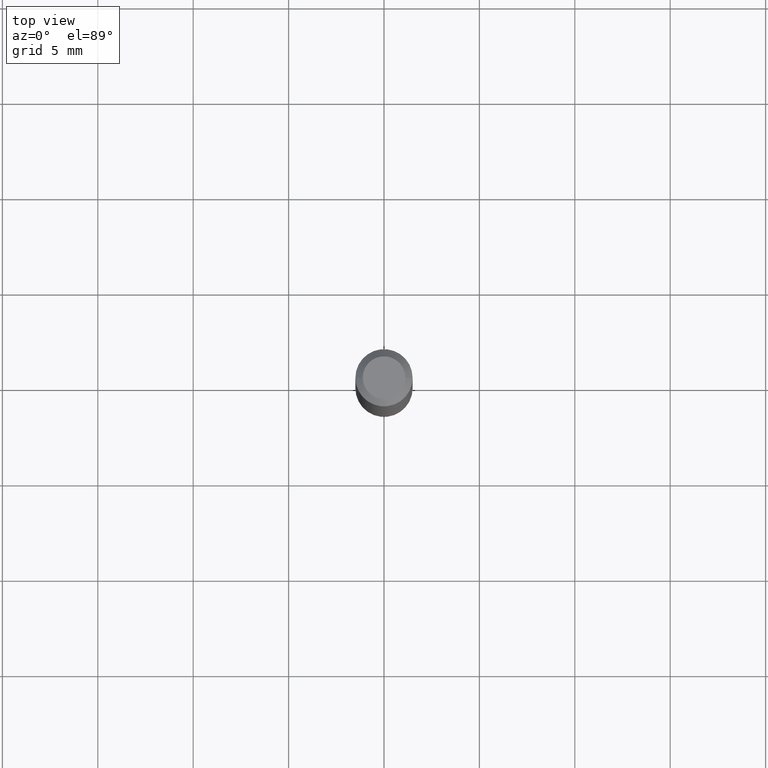
[diagram: clean part render]
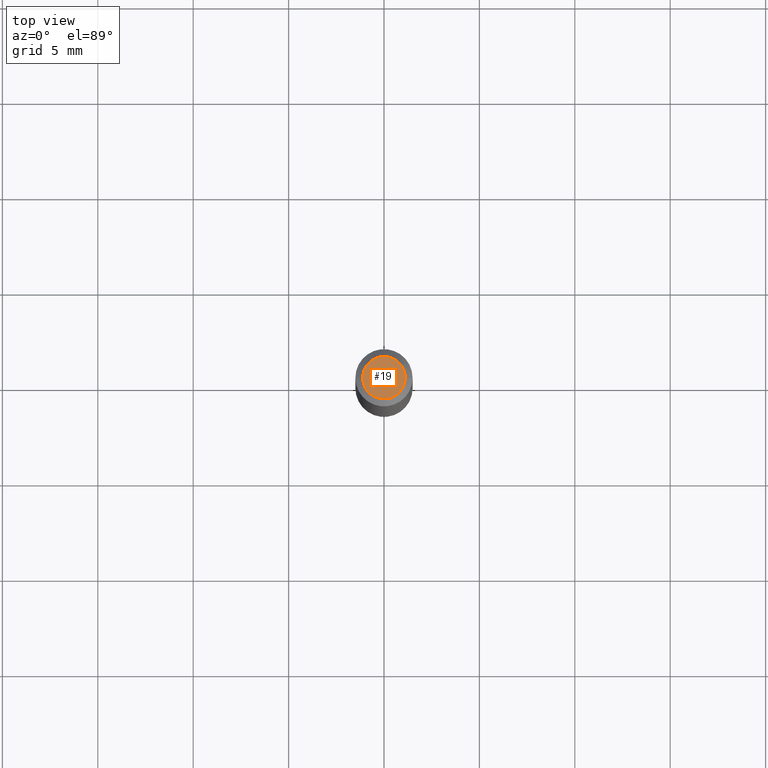
[diagram: same view with one face highlighted and labeled with its STEP entity id]
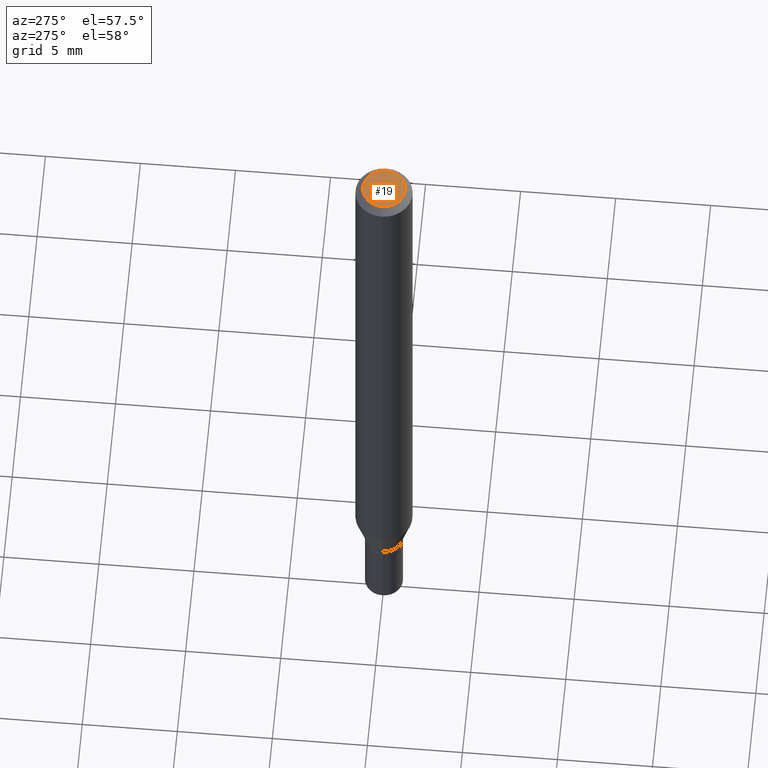
[diagram: same view with one face highlighted and labeled with its STEP entity id]
A machine part, top view. The second image highlights one B-rep face of the part: STEP entity #19.
A second angle (auxiliary view) of the same face is appended — the face is thin or edge-on in the first view.
In plain terms, the highlighted planar face has unit normal (0, -0, -1).
Its self-contained STEP definition (entity closure, byte-faithful):
#13 = DIRECTION ( 'NONE',  ( 1.000000000000000000, -6.982962677686265922E-15, 4.819687581474398999E-29 ) ) ;
#19 = ADVANCED_FACE ( 'NONE', ( #387 ), #27, .F. ) ;
#22 = DIRECTION ( 'NONE',  ( -2.445468806185136597E-29, 3.491481338843145583E-15, 1.000000000000000000 ) ) ;
#27 = PLANE ( 'NONE',  #60 ) ;
#44 = ORIENTED_EDGE ( 'NONE', *, *, #304, .T. ) ;
#46 = CARTESIAN_POINT ( 'NONE',  ( 0.04404999999999999888, -3.798447818264455642E-16, 3.533548453838735986E-16 ) ) ;
#60 = AXIS2_PLACEMENT_3D ( 'NONE', #234, #134, #381 ) ;
#61 = DIRECTION ( 'NONE',  ( 1.000000000000000000, -6.982962677686265922E-15, 4.819687581474398999E-29 ) ) ;
#99 = CARTESIAN_POINT ( 'NONE',  ( -8.641182519006289553E-45, 1.233731848647591164E-30, 3.533548453838711334E-16 ) ) ;
#134 = DIRECTION ( 'NONE',  ( 2.438088387897960049E-29, -3.491481338843145188E-15, -1.000000000000000000 ) ) ;
#145 = AXIS2_PLACEMENT_3D ( 'NONE', #373, #22, #13 ) ;
#164 = CIRCLE ( 'NONE', #247, 0.04404999999999999888 ) ;
#174 = VERTEX_POINT ( 'NONE', #293 ) ;
#206 = DIRECTION ( 'NONE',  ( -2.445468806185136597E-29, 3.491481338843145583E-15, 1.000000000000000000 ) ) ;
#234 = CARTESIAN_POINT ( 'NONE',  ( 3.075995059520799729E-16, 0.04404999999999999888, 2.287766971589501637E-17 ) ) ;
#247 = AXIS2_PLACEMENT_3D ( 'NONE', #99, #206, #61 ) ;
#293 = CARTESIAN_POINT ( 'NONE',  ( -0.04404999999999999888, 3.337856159934041534E-16, 3.533548453838689148E-16 ) ) ;
#304 = EDGE_CURVE ( 'NONE', #174, #343, #337, .T. ) ;
#337 = CIRCLE ( 'NONE', #145, 0.04404999999999999888 ) ;
#338 = ORIENTED_EDGE ( 'NONE', *, *, #442, .T. ) ;
#343 = VERTEX_POINT ( 'NONE', #46 ) ;
#373 = CARTESIAN_POINT ( 'NONE',  ( -8.641182519006289553E-45, 1.233731848647591164E-30, 3.533548453838711334E-16 ) ) ;
#381 = DIRECTION ( 'NONE',  ( -1.000000000000000000, 6.982962677686265922E-15, -4.876176775795935793E-29 ) ) ;
#387 = FACE_OUTER_BOUND ( 'NONE', #433, .T. ) ;
#433 = EDGE_LOOP ( 'NONE', ( #44, #338 ) ) ;
#442 = EDGE_CURVE ( 'NONE', #343, #174, #164, .T. ) ;